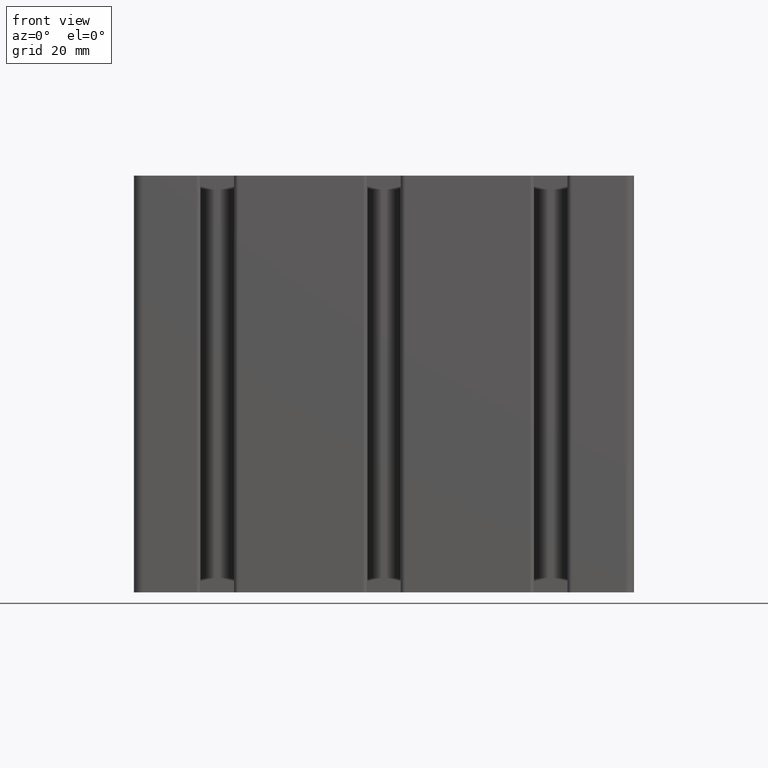
[diagram: clean part render]
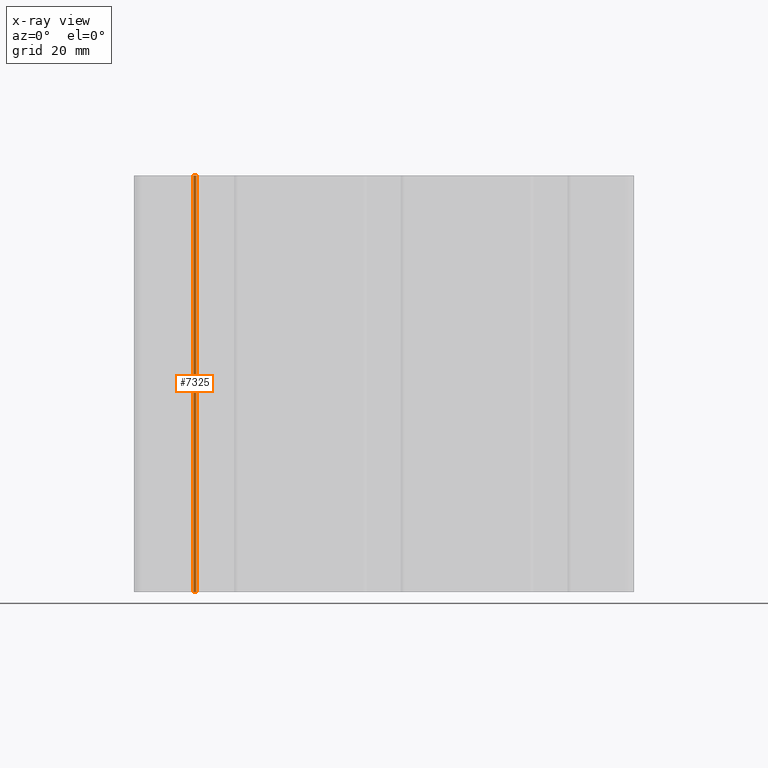
[diagram: x-ray — body ghosted, one internal face saturated and labeled with its STEP entity id]
A machine part, front view, then the same camera in x-ray: the body is ghosted and one INTERNAL B-rep face — a face not visible from any outside direction — is saturated and labeled: STEP entity #7325.
In plain terms, the highlighted cylindrical surface (edge-blend (fillet) strip) has radius 1 mm, axis along (0, 0, 1).
Its self-contained STEP definition (entity closure, byte-faithful):
#253=FACE_OUTER_BOUND('',#637,.T.);
#637=EDGE_LOOP('',(#4901,#4902,#4903,#4904));
#1061=LINE('',#10822,#1829);
#1062=LINE('',#10828,#1830);
#1829=VECTOR('',#8539,100.);
#1830=VECTOR('',#8546,100.);
#2583=CIRCLE('',#7726,0.999999999999998);
#2584=CIRCLE('',#7727,0.999999999999998);
#2969=VERTEX_POINT('',#10818);
#2970=VERTEX_POINT('',#10820);
#2971=VERTEX_POINT('',#10824);
#2972=VERTEX_POINT('',#10826);
#3747=EDGE_CURVE('',#2970,#2969,#1061,.T.);
#3748=EDGE_CURVE('',#2969,#2971,#2583,.T.);
#3749=EDGE_CURVE('',#2972,#2970,#2584,.T.);
#3750=EDGE_CURVE('',#2972,#2971,#1062,.T.);
#4901=ORIENTED_EDGE('',*,*,#3748,.F.);
#4902=ORIENTED_EDGE('',*,*,#3747,.F.);
#4903=ORIENTED_EDGE('',*,*,#3749,.F.);
#4904=ORIENTED_EDGE('',*,*,#3750,.T.);
#7132=CYLINDRICAL_SURFACE('',#7725,0.999999999999998);
#7325=ADVANCED_FACE('',(#253),#7132,.F.);
#7725=AXIS2_PLACEMENT_3D('',#10823,#8540,#8541);
#7726=AXIS2_PLACEMENT_3D('',#10825,#8542,#8543);
#7727=AXIS2_PLACEMENT_3D('',#10827,#8544,#8545);
#8539=DIRECTION('',(0.,0.,1.));
#8540=DIRECTION('center_axis',(0.,0.,1.));
#8541=DIRECTION('ref_axis',(0.707106781186555,0.70710678118654,0.));
#8542=DIRECTION('center_axis',(0.,0.,-1.));
#8543=DIRECTION('ref_axis',(0.707106781186555,0.70710678118654,0.));
#8544=DIRECTION('center_axis',(0.,0.,1.));
#8545=DIRECTION('ref_axis',(0.707106781186555,0.70710678118654,0.));
#8546=DIRECTION('',(0.,0.,1.));
#10818=CARTESIAN_POINT('',(-45.0251262658471,-13.5,100.));
#10820=CARTESIAN_POINT('',(-45.0251262658471,-13.5,0.));
#10822=CARTESIAN_POINT('',(-45.0251262658471,-13.5,0.));
#10823=CARTESIAN_POINT('Origin',(-45.0251262658471,-12.5,0.));
#10824=CARTESIAN_POINT('',(-45.7322330470336,-13.2071067811865,100.));
#10825=CARTESIAN_POINT('Origin',(-45.0251262658471,-12.5,100.));
#10826=CARTESIAN_POINT('',(-45.7322330470336,-13.2071067811865,0.));
#10827=CARTESIAN_POINT('Origin',(-45.0251262658471,-12.5,0.));
#10828=CARTESIAN_POINT('',(-45.7322330470336,-13.2071067811865,0.));